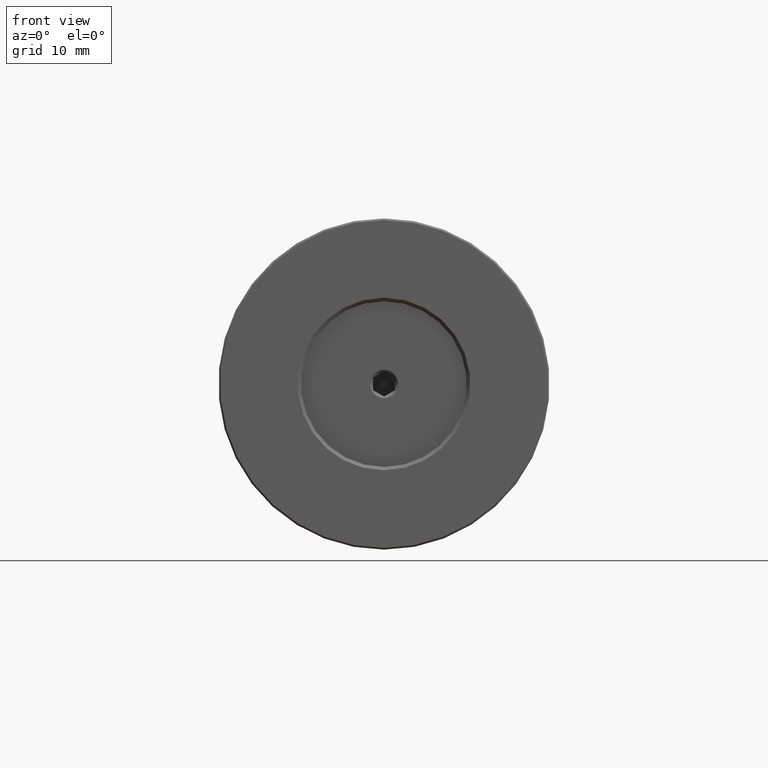
[diagram: clean part render]
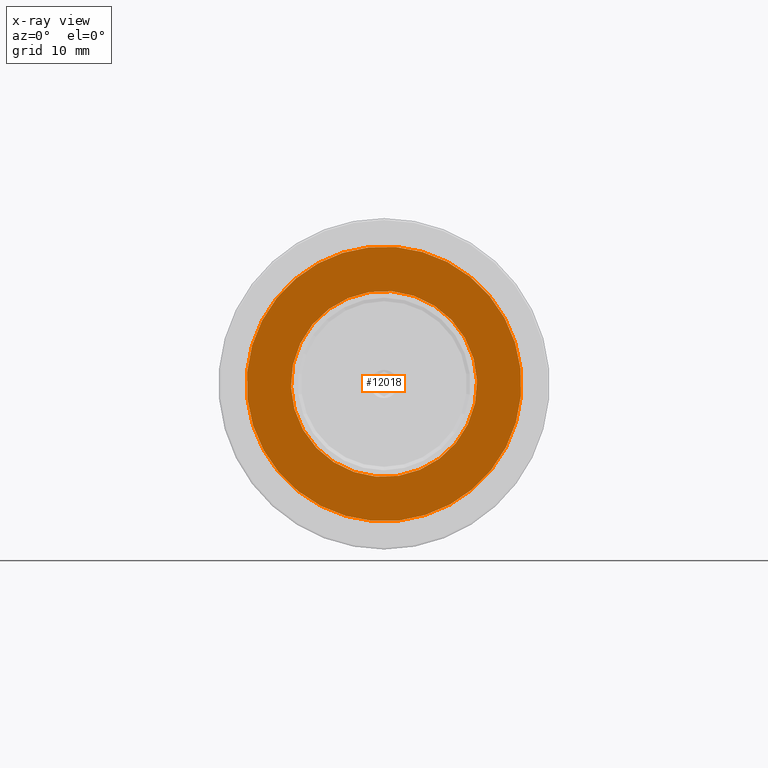
[diagram: x-ray — body ghosted, one internal face saturated and labeled with its STEP entity id]
A machine part, front view, then the same camera in x-ray: the body is ghosted and one INTERNAL B-rep face — a face not visible from any outside direction — is saturated and labeled: STEP entity #12018.
In plain terms, the highlighted planar face has unit normal (0, 1, 0).
Its self-contained STEP definition (entity closure, byte-faithful):
#309 = DIRECTION ( 'NONE',  ( 0.000000000000000000, 0.000000000000000000, 1.000000000000000000 ) ) ;
#528 = ORIENTED_EDGE ( 'NONE', *, *, #791, .T. ) ;
#698 = VERTEX_POINT ( 'NONE', #7944 ) ;
#707 = CARTESIAN_POINT ( 'NONE',  ( 0.000000000000000000, -6.000000000000000000, -13.19999999999999574 ) ) ;
#791 = EDGE_CURVE ( 'NONE', #9280, #4460, #2280, .T. ) ;
#888 = EDGE_CURVE ( 'NONE', #8877, #698, #11105, .T. ) ;
#954 = CARTESIAN_POINT ( 'NONE',  ( 0.000000000000000000, -6.000000000000000000, 0.000000000000000000 ) ) ;
#1229 = CARTESIAN_POINT ( 'NONE',  ( 0.000000000000000000, -6.000000000000000000, 0.000000000000000000 ) ) ;
#1582 = AXIS2_PLACEMENT_3D ( 'NONE', #10436, #10260, #5765 ) ;
#2280 = CIRCLE ( 'NONE', #4817, 13.19999999999999574 ) ;
#3038 = ORIENTED_EDGE ( 'NONE', *, *, #10572, .T. ) ;
#3111 = DIRECTION ( 'NONE',  ( 0.000000000000000000, 1.000000000000000000, 0.000000000000000000 ) ) ;
#3464 = CARTESIAN_POINT ( 'NONE',  ( 1.616533774874505809E-15, -6.000000000000000000, 13.19999999999999574 ) ) ;
#4078 = EDGE_CURVE ( 'NONE', #698, #8877, #10006, .T. ) ;
#4460 = VERTEX_POINT ( 'NONE', #3464 ) ;
#4753 = FACE_BOUND ( 'NONE', #6784, .T. ) ;
#4817 = AXIS2_PLACEMENT_3D ( 'NONE', #9855, #6160, #9919 ) ;
#5765 = DIRECTION ( 'NONE',  ( 0.000000000000000000, 0.000000000000000000, 1.000000000000000000 ) ) ;
#6160 = DIRECTION ( 'NONE',  ( 0.000000000000000000, 1.000000000000000000, 0.000000000000000000 ) ) ;
#6713 = PLANE ( 'NONE',  #8378 ) ;
#6774 = AXIS2_PLACEMENT_3D ( 'NONE', #954, #12123, #9239 ) ;
#6784 = EDGE_LOOP ( 'NONE', ( #528, #3038 ) ) ;
#7078 = ORIENTED_EDGE ( 'NONE', *, *, #4078, .T. ) ;
#7396 = AXIS2_PLACEMENT_3D ( 'NONE', #1229, #9434, #309 ) ;
#7700 = DIRECTION ( 'NONE',  ( 0.000000000000000000, -0.000000000000000000, 1.000000000000000000 ) ) ;
#7944 = CARTESIAN_POINT ( 'NONE',  ( 0.000000000000000000, -6.000000000000000000, 19.50000000000001066 ) ) ;
#8378 = AXIS2_PLACEMENT_3D ( 'NONE', #11533, #3111, #7700 ) ;
#8830 = CARTESIAN_POINT ( 'NONE',  ( 2.418677428316023515E-15, -6.000000000000000000, -19.50000000000001066 ) ) ;
#8877 = VERTEX_POINT ( 'NONE', #8830 ) ;
#9239 = DIRECTION ( 'NONE',  ( 0.000000000000000000, 0.000000000000000000, 1.000000000000000000 ) ) ;
#9280 = VERTEX_POINT ( 'NONE', #707 ) ;
#9426 = FACE_OUTER_BOUND ( 'NONE', #11998, .T. ) ;
#9434 = DIRECTION ( 'NONE',  ( 0.000000000000000000, 1.000000000000000000, 0.000000000000000000 ) ) ;
#9491 = ORIENTED_EDGE ( 'NONE', *, *, #888, .T. ) ;
#9855 = CARTESIAN_POINT ( 'NONE',  ( 0.000000000000000000, -6.000000000000000000, 0.000000000000000000 ) ) ;
#9919 = DIRECTION ( 'NONE',  ( 0.000000000000000000, 0.000000000000000000, 1.000000000000000000 ) ) ;
#10006 = CIRCLE ( 'NONE', #1582, 19.50000000000001066 ) ;
#10260 = DIRECTION ( 'NONE',  ( -0.000000000000000000, -1.000000000000000000, -0.000000000000000000 ) ) ;
#10436 = CARTESIAN_POINT ( 'NONE',  ( 0.000000000000000000, -6.000000000000000000, 0.000000000000000000 ) ) ;
#10551 = CIRCLE ( 'NONE', #7396, 13.19999999999999574 ) ;
#10572 = EDGE_CURVE ( 'NONE', #4460, #9280, #10551, .T. ) ;
#11105 = CIRCLE ( 'NONE', #6774, 19.50000000000001066 ) ;
#11533 = CARTESIAN_POINT ( 'NONE',  ( 0.000000000000000000, -6.000000000000000000, 0.000000000000000000 ) ) ;
#11998 = EDGE_LOOP ( 'NONE', ( #7078, #9491 ) ) ;
#12018 = ADVANCED_FACE ( 'NONE', ( #9426, #4753 ), #6713, .F. ) ;
#12123 = DIRECTION ( 'NONE',  ( -0.000000000000000000, -1.000000000000000000, -0.000000000000000000 ) ) ;